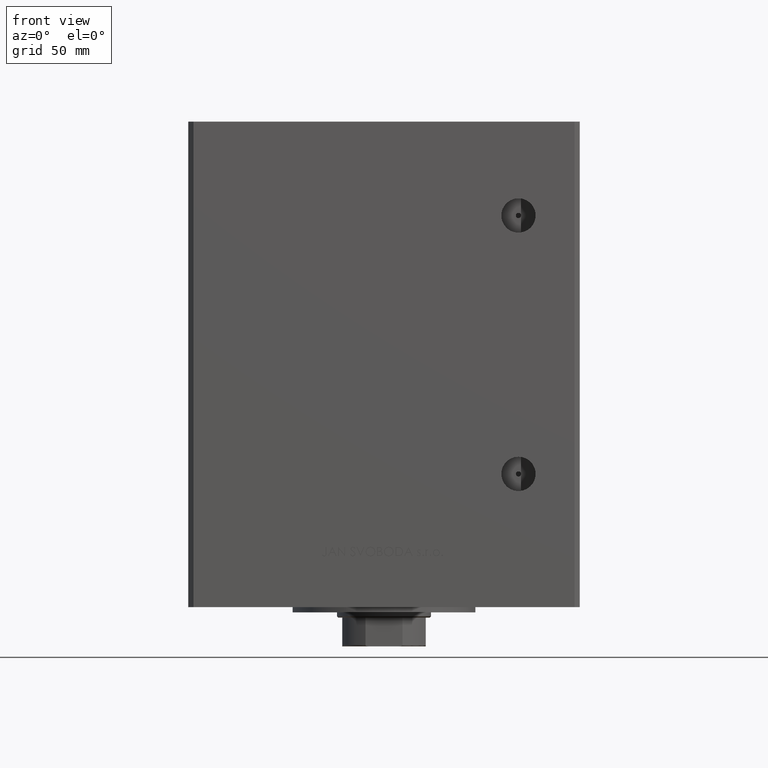
[diagram: clean part render]
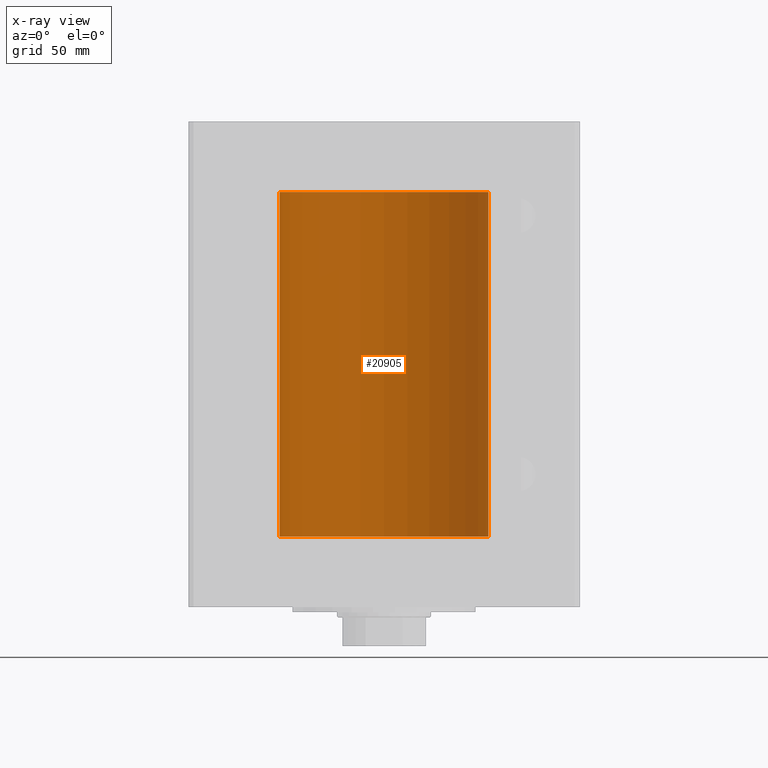
[diagram: x-ray — body ghosted, one internal face saturated and labeled with its STEP entity id]
A machine part, front view, then the same camera in x-ray: the body is ghosted and one INTERNAL B-rep face — a face not visible from any outside direction — is saturated and labeled: STEP entity #20905.
In plain terms, the highlighted cylindrical surface (partial cylindrical patch) has radius 40 mm, axis along (-0, -0, -1).
Its self-contained STEP definition (entity closure, byte-faithful):
#763 = EDGE_LOOP ( 'NONE', ( #33114, #31891, #41208, #7943 ) ) ;
#3674 = CARTESIAN_POINT ( 'NONE',  ( 0.000000000000000000, 0.000000000000000000, 0.000000000000000000 ) ) ;
#7138 = EDGE_CURVE ( 'NONE', #38975, #11363, #11098, .T. ) ;
#7243 = DIRECTION ( 'NONE',  ( -0.000000000000000000, 0.000000000000000000, 1.000000000000000000 ) ) ;
#7657 = DIRECTION ( 'NONE',  ( 1.000000000000000000, 0.000000000000000000, 0.000000000000000000 ) ) ;
#7755 = DIRECTION ( 'NONE',  ( -0.000000000000000000, -0.000000000000000000, -1.000000000000000000 ) ) ;
#7943 = ORIENTED_EDGE ( 'NONE', *, *, #9096, .F. ) ;
#8343 = CARTESIAN_POINT ( 'NONE',  ( 40.00000000000000000, 4.898587196589413026E-15, 132.0000000000000000 ) ) ;
#9096 = EDGE_CURVE ( 'NONE', #29005, #11363, #45494, .T. ) ;
#11098 = LINE ( 'NONE', #19472, #47011 ) ;
#11363 = VERTEX_POINT ( 'NONE', #30961 ) ;
#13373 = AXIS2_PLACEMENT_3D ( 'NONE', #13795, #29304, #17118 ) ;
#13795 = CARTESIAN_POINT ( 'NONE',  ( 0.000000000000000000, 0.000000000000000000, 132.0000000000000000 ) ) ;
#15117 = AXIS2_PLACEMENT_3D ( 'NONE', #32088, #47573, #7657 ) ;
#17118 = DIRECTION ( 'NONE',  ( -1.000000000000000000, 0.000000000000000000, 0.000000000000000000 ) ) ;
#19472 = CARTESIAN_POINT ( 'NONE',  ( -40.00000000000000000, 0.000000000000000000, 132.0000000000000000 ) ) ;
#20905 = ADVANCED_FACE ( 'NONE', ( #32143 ), #36201, .F. ) ;
#23868 = DIRECTION ( 'NONE',  ( -0.000000000000000000, -0.000000000000000000, -1.000000000000000000 ) ) ;
#24054 = EDGE_CURVE ( 'NONE', #36626, #38975, #25686, .T. ) ;
#25686 = CIRCLE ( 'NONE', #15117, 40.00000000000000000 ) ;
#28335 = VECTOR ( 'NONE', #23868, 1000.000000000000000 ) ;
#29005 = VERTEX_POINT ( 'NONE', #35138 ) ;
#29304 = DIRECTION ( 'NONE',  ( -0.000000000000000000, -0.000000000000000000, -1.000000000000000000 ) ) ;
#30961 = CARTESIAN_POINT ( 'NONE',  ( -40.00000000000000000, 0.000000000000000000, 0.000000000000000000 ) ) ;
#31891 = ORIENTED_EDGE ( 'NONE', *, *, #24054, .T. ) ;
#32088 = CARTESIAN_POINT ( 'NONE',  ( 0.000000000000000000, 0.000000000000000000, 132.0000000000000000 ) ) ;
#32143 = FACE_OUTER_BOUND ( 'NONE', #763, .T. ) ;
#33081 = CARTESIAN_POINT ( 'NONE',  ( -40.00000000000000000, 0.000000000000000000, 132.0000000000000000 ) ) ;
#33114 = ORIENTED_EDGE ( 'NONE', *, *, #49834, .F. ) ;
#33986 = DIRECTION ( 'NONE',  ( 1.000000000000000000, 0.000000000000000000, 0.000000000000000000 ) ) ;
#35138 = CARTESIAN_POINT ( 'NONE',  ( 40.00000000000000000, 4.898587196589413026E-15, 0.000000000000000000 ) ) ;
#36201 = CYLINDRICAL_SURFACE ( 'NONE', #13373, 40.00000000000000000 ) ;
#36626 = VERTEX_POINT ( 'NONE', #47754 ) ;
#38975 = VERTEX_POINT ( 'NONE', #33081 ) ;
#41208 = ORIENTED_EDGE ( 'NONE', *, *, #7138, .T. ) ;
#43190 = LINE ( 'NONE', #8343, #28335 ) ;
#45494 = CIRCLE ( 'NONE', #47928, 40.00000000000000000 ) ;
#47011 = VECTOR ( 'NONE', #7755, 1000.000000000000000 ) ;
#47573 = DIRECTION ( 'NONE',  ( -0.000000000000000000, 0.000000000000000000, 1.000000000000000000 ) ) ;
#47754 = CARTESIAN_POINT ( 'NONE',  ( 40.00000000000000000, 4.898587196589413026E-15, 132.0000000000000000 ) ) ;
#47928 = AXIS2_PLACEMENT_3D ( 'NONE', #3674, #7243, #33986 ) ;
#49834 = EDGE_CURVE ( 'NONE', #36626, #29005, #43190, .T. ) ;